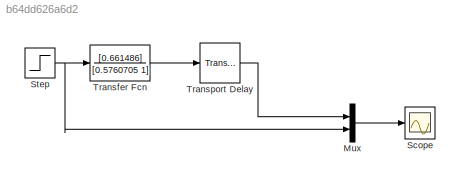
MODEL slx_b64dd626a6d2
KIND model
CONFIG AbsTol = auto
CONFIG EnableMultiTasking = off
CONFIG FixedStep = auto
CONFIG MaxStep = auto
CONFIG MinStep = auto
CONFIG RelTol = 1e-3
CONFIG SampleTimeConstraint = Unconstrained
CONFIG SolverName = VariableStepAuto
CONFIG StartTime = 0.0
CONFIG StopTime = 10.0
BLOCK [Mux] Mux
  DisplayOption = bar
  Inputs = 2
BLOCK [Scope] Scope
  Floating = off
  NumInputPorts = 1
  ScopeSpecificationString = Simulink.scopes.TimeScopeBlockCfg('CurrentConfiguration', extmgr.ConfigurationSet(extmgr.Configuration('Core','General UI',true,'FigureColor',[1 1 1]),extmgr.Configuration('Core','Source UI',true),extmgr.Configuration('Sources','WiredSimulink',true),extmgr.Configuration('Visuals','Time Domain',true,'SerializedDisplays',{struct('MinYLimReal','-0.1875','MaxYLimReal','1.6875','YLabelReal','','MinYLim...<+1570ch>
BLOCK [Step] Step
  After = 1.5
  SampleTime = 0
BLOCK [TransferFcn] Transfer Fcn
  Denominator = [0.5760705 1]
  Numerator = [0.661486]
BLOCK [TransportDelay] Transport Delay
  DelayTime = 0.4529695
LINE Mux:1 -> Scope:1
NET Step:1 -> Mux:2, Transfer Fcn:1
LINE Transfer Fcn:1 -> Transport Delay:1
LINE Transport Delay:1 -> Mux:1
note: NET lines group one-source signal fan-out (src -> all destinations, sorted); 1:1 wires keep LINE
